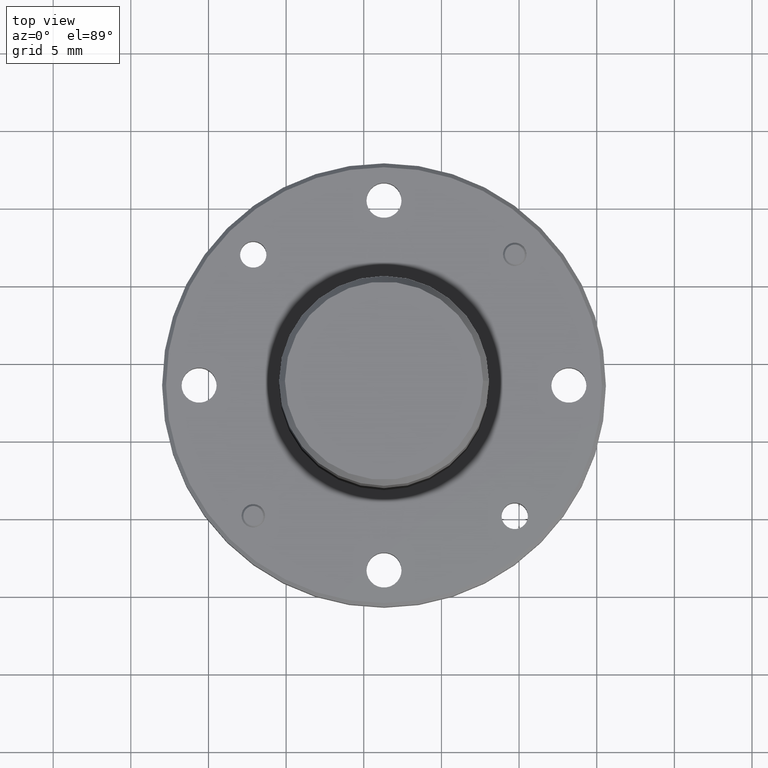
[diagram: clean part render]
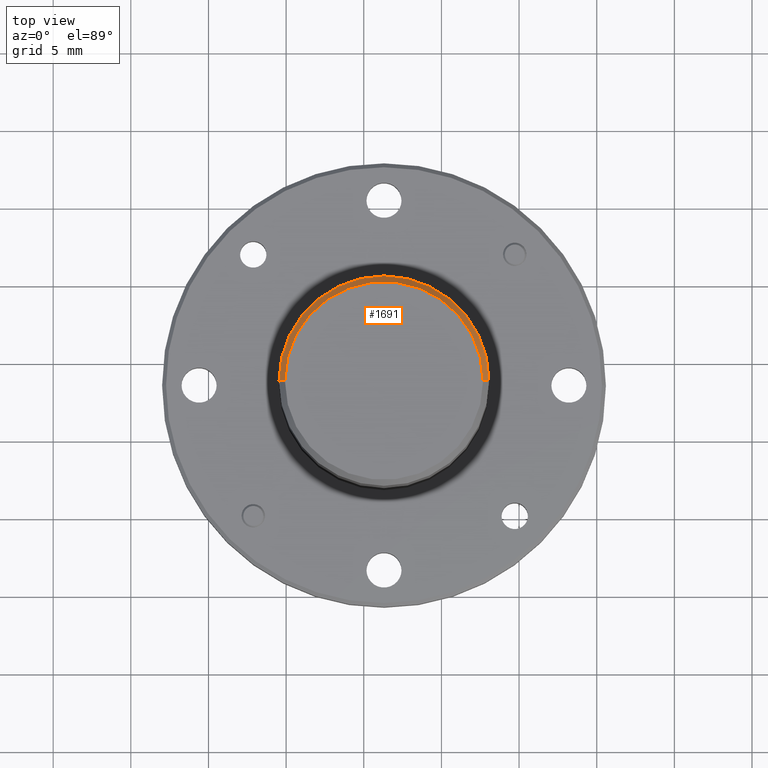
[diagram: same view with one face highlighted and labeled with its STEP entity id]
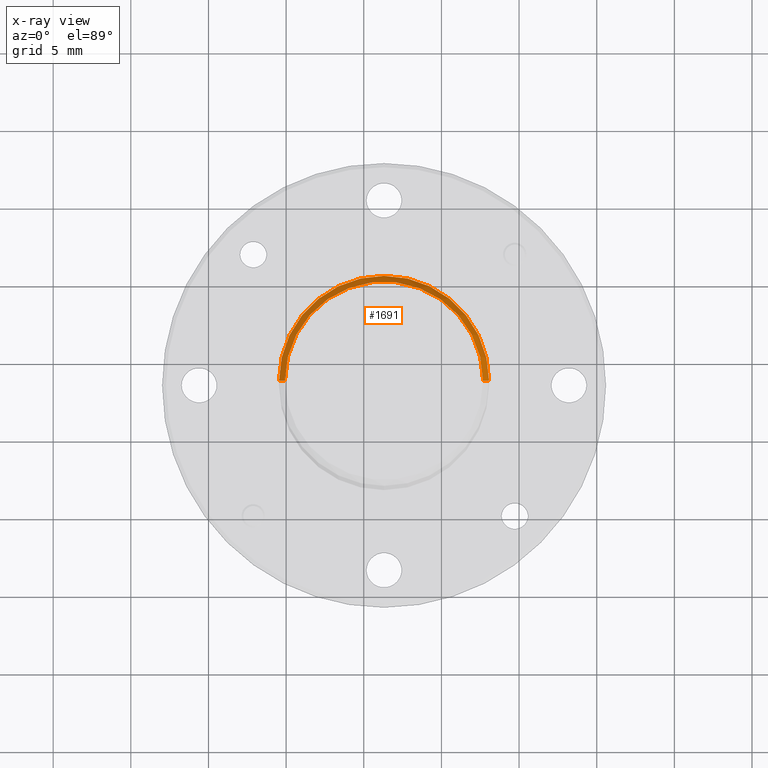
[diagram: x-ray of the same camera — body ghosted, the highlighted face saturated]
A machine part, top view. The second image highlights one B-rep face of the part: STEP entity #1691.
The next image is the same camera in x-ray: the body ghosted, the highlighted face saturated — about 0% of this face is hidden behind the body in this view.
In plain terms, the highlighted conical surface has half-angle 31.5 deg.
Its self-contained STEP definition (entity closure, byte-faithful):
#12 = CIRCLE ( 'NONE', #1373, 0.2512671395640202500 ) ;
#13 = VERTEX_POINT ( 'NONE', #931 ) ;
#37 = AXIS2_PLACEMENT_3D ( 'NONE', #1731, #2050, #634 ) ;
#54 = DIRECTION ( 'NONE',  ( 0.0000000000000000000, 0.0000000000000000000, -1.000000000000000000 ) ) ;
#65 = CARTESIAN_POINT ( 'NONE',  ( 0.05127403736761039500, 0.5322466351666983500, 1.095327140626270600 ) ) ;
#120 = LINE ( 'NONE', #416, #1403 ) ;
#135 = DIRECTION ( 'NONE',  ( -1.000000000000000000, 0.0000000000000000000, 0.0000000000000000000 ) ) ;
#145 = ORIENTED_EDGE ( 'NONE', *, *, #1230, .T. ) ;
#213 = CARTESIAN_POINT ( 'NONE',  ( -0.2148898285359919500, 0.5322466351666983500, 1.071017892616327600 ) ) ;
#364 = DIRECTION ( 'NONE',  ( -1.000000000000000000, 0.0000000000000000000, 0.0000000000000000000 ) ) ;
#416 = CARTESIAN_POINT ( 'NONE',  ( -0.1999931021964098400, 0.5322466351666983500, 1.095327140626270600 ) ) ;
#443 = CARTESIAN_POINT ( 'NONE',  ( 0.05127403736761039500, 0.5322466351666983500, 1.095327140626270600 ) ) ;
#509 = EDGE_CURVE ( 'NONE', #689, #13, #633, .T. ) ;
#633 = CIRCLE ( 'NONE', #37, 0.2661638659036022500 ) ;
#634 = DIRECTION ( 'NONE',  ( -1.000000000000000000, 0.0000000000000000000, 0.0000000000000000000 ) ) ;
#689 = VERTEX_POINT ( 'NONE', #213 ) ;
#745 = VECTOR ( 'NONE', #1095, 39.37007874015748900 ) ;
#764 = FACE_OUTER_BOUND ( 'NONE', #895, .T. ) ;
#774 = ORIENTED_EDGE ( 'NONE', *, *, #509, .F. ) ;
#895 = EDGE_LOOP ( 'NONE', ( #1897, #145, #774, #1372 ) ) ;
#911 = DIRECTION ( 'NONE',  ( -0.5224985647159491300, 0.0000000000000000000, -0.8526401643540920700 ) ) ;
#931 = CARTESIAN_POINT ( 'NONE',  ( 0.3174379032712126800, 0.5322466351666983500, 1.071017892616327600 ) ) ;
#1053 = EDGE_CURVE ( 'NONE', #1225, #1058, #12, .T. ) ;
#1058 = VERTEX_POINT ( 'NONE', #1714 ) ;
#1095 = DIRECTION ( 'NONE',  ( 0.5224985647159491300, 6.398761948384731400E-017, -0.8526401643540920700 ) ) ;
#1225 = VERTEX_POINT ( 'NONE', #1900 ) ;
#1230 = EDGE_CURVE ( 'NONE', #1225, #13, #1957, .T. ) ;
#1270 = CARTESIAN_POINT ( 'NONE',  ( 0.3025411769316306300, 0.5322466351666983500, 1.095327140626270600 ) ) ;
#1372 = ORIENTED_EDGE ( 'NONE', *, *, #1880, .F. ) ;
#1373 = AXIS2_PLACEMENT_3D ( 'NONE', #443, #1398, #135 ) ;
#1398 = DIRECTION ( 'NONE',  ( -0.0000000000000000000, -0.0000000000000000000, 1.000000000000000000 ) ) ;
#1403 = VECTOR ( 'NONE', #911, 39.37007874015748900 ) ;
#1431 = AXIS2_PLACEMENT_3D ( 'NONE', #65, #54, #364 ) ;
#1691 = ADVANCED_FACE ( 'NONE', ( #764 ), #1734, .T. ) ;
#1714 = CARTESIAN_POINT ( 'NONE',  ( -0.1999931021964098400, 0.5322466351666983500, 1.095327140626270600 ) ) ;
#1731 = CARTESIAN_POINT ( 'NONE',  ( 0.05127403736761039500, 0.5322466351666983500, 1.071017892616327600 ) ) ;
#1734 = CONICAL_SURFACE ( 'NONE', #1431, 0.2512671395640202500, 0.5497787143782140200 ) ;
#1880 = EDGE_CURVE ( 'NONE', #1058, #689, #120, .T. ) ;
#1897 = ORIENTED_EDGE ( 'NONE', *, *, #1053, .F. ) ;
#1900 = CARTESIAN_POINT ( 'NONE',  ( 0.3025411769316306300, 0.5322466351666983500, 1.095327140626270600 ) ) ;
#1957 = LINE ( 'NONE', #1270, #745 ) ;
#2050 = DIRECTION ( 'NONE',  ( 0.0000000000000000000, 0.0000000000000000000, -1.000000000000000000 ) ) ;